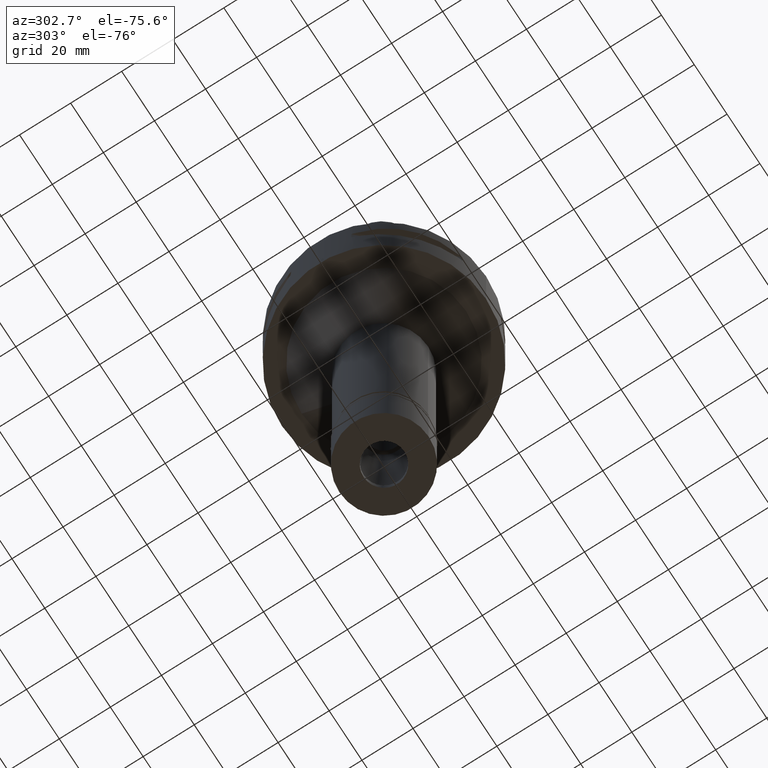
[diagram: clean part render]
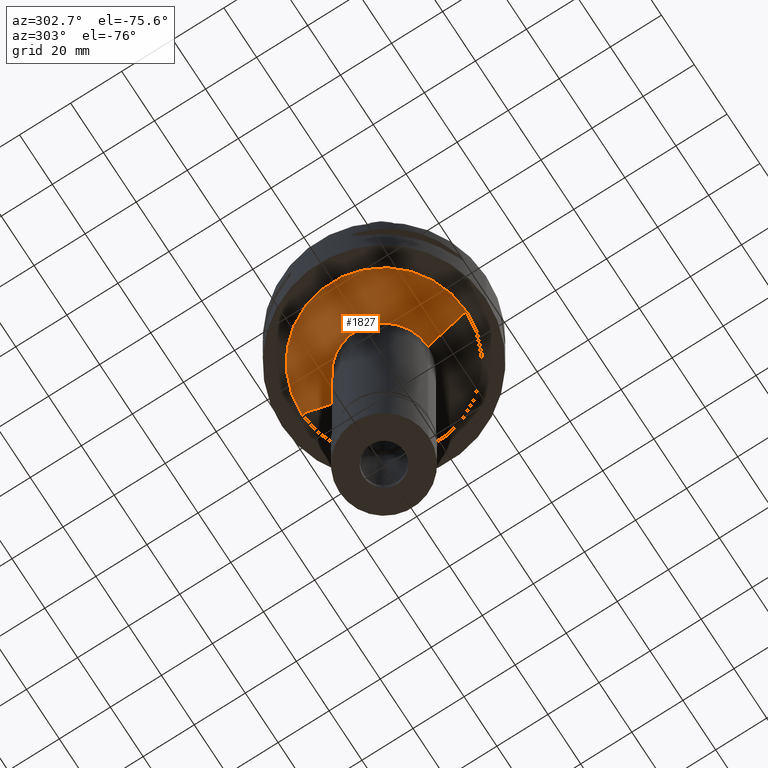
[diagram: same view with one face highlighted and labeled with its STEP entity id]
A machine part, auxiliary view. The second image highlights one B-rep face of the part: STEP entity #1827.
In plain terms, the highlighted conical surface has half-angle 45 deg.
Its self-contained STEP definition (entity closure, byte-faithful):
#87 = CARTESIAN_POINT ( 'NONE',  ( 0.0000000000000000000, 0.0000000000000000000, -30.00000000000000000 ) ) ;
#275 = LINE ( 'NONE', #300, #2601 ) ;
#300 = CARTESIAN_POINT ( 'NONE',  ( 0.0000000000000000000, -32.25000000000000000, -30.00000000000000000 ) ) ;
#313 = CARTESIAN_POINT ( 'NONE',  ( 0.0000000000000000000, 32.25000000000000000, -30.00000000000000000 ) ) ;
#396 = ORIENTED_EDGE ( 'NONE', *, *, #995, .F. ) ;
#659 = DIRECTION ( 'NONE',  ( 0.0000000000000000000, -0.7071067811865474617, -0.7071067811865474617 ) ) ;
#668 = DIRECTION ( 'NONE',  ( 0.0000000000000000000, 0.0000000000000000000, -1.000000000000000000 ) ) ;
#784 = AXIS2_PLACEMENT_3D ( 'NONE', #87, #668, #4644 ) ;
#838 = CARTESIAN_POINT ( 'NONE',  ( 0.0000000000000000000, 32.25000000000000000, -30.00000000000000000 ) ) ;
#995 = EDGE_CURVE ( 'NONE', #1574, #2195, #275, .T. ) ;
#1028 = VECTOR ( 'NONE', #659, 1000.000000000000114 ) ;
#1100 = CARTESIAN_POINT ( 'NONE',  ( 0.0000000000000000000, -17.25000000000000000, -45.00000000000000000 ) ) ;
#1214 = CARTESIAN_POINT ( 'NONE',  ( 0.0000000000000000000, 17.25000000000000000, -45.00000000000000000 ) ) ;
#1353 = VERTEX_POINT ( 'NONE', #1214 ) ;
#1410 = DIRECTION ( 'NONE',  ( 0.0000000000000000000, 0.0000000000000000000, 1.000000000000000000 ) ) ;
#1509 = FACE_OUTER_BOUND ( 'NONE', #2941, .T. ) ;
#1532 = ORIENTED_EDGE ( 'NONE', *, *, #1660, .T. ) ;
#1574 = VERTEX_POINT ( 'NONE', #2507 ) ;
#1600 = CIRCLE ( 'NONE', #2678, 17.25000000000000000 ) ;
#1660 = EDGE_CURVE ( 'NONE', #1574, #3405, #4186, .T. ) ;
#1827 = ADVANCED_FACE ( 'NONE', ( #1509 ), #4195, .T. ) ;
#2097 = DIRECTION ( 'NONE',  ( 0.0000000000000000000, -1.000000000000000000, 0.0000000000000000000 ) ) ;
#2195 = VERTEX_POINT ( 'NONE', #1100 ) ;
#2333 = EDGE_CURVE ( 'NONE', #3405, #1353, #4687, .T. ) ;
#2507 = CARTESIAN_POINT ( 'NONE',  ( 0.0000000000000000000, -32.25000000000000000, -30.00000000000000000 ) ) ;
#2601 = VECTOR ( 'NONE', #3504, 1000.000000000000114 ) ;
#2678 = AXIS2_PLACEMENT_3D ( 'NONE', #4148, #2903, #2097 ) ;
#2903 = DIRECTION ( 'NONE',  ( 0.0000000000000000000, 0.0000000000000000000, -1.000000000000000000 ) ) ;
#2941 = EDGE_LOOP ( 'NONE', ( #4122, #396, #1532, #3494 ) ) ;
#2994 = DIRECTION ( 'NONE',  ( 0.0000000000000000000, 1.000000000000000000, 0.0000000000000000000 ) ) ;
#3101 = CARTESIAN_POINT ( 'NONE',  ( 0.0000000000000000000, 0.0000000000000000000, -37.50000000000000000 ) ) ;
#3405 = VERTEX_POINT ( 'NONE', #838 ) ;
#3494 = ORIENTED_EDGE ( 'NONE', *, *, #2333, .T. ) ;
#3504 = DIRECTION ( 'NONE',  ( 0.0000000000000000000, 0.7071067811865474617, -0.7071067811865474617 ) ) ;
#4122 = ORIENTED_EDGE ( 'NONE', *, *, #5111, .F. ) ;
#4148 = CARTESIAN_POINT ( 'NONE',  ( 0.0000000000000000000, 0.0000000000000000000, -45.00000000000000000 ) ) ;
#4186 = CIRCLE ( 'NONE', #784, 32.25000000000000000 ) ;
#4195 = CONICAL_SURFACE ( 'NONE', #4535, 24.75000000000000000, 0.7853981633972997312 ) ;
#4535 = AXIS2_PLACEMENT_3D ( 'NONE', #3101, #1410, #2994 ) ;
#4644 = DIRECTION ( 'NONE',  ( 0.0000000000000000000, -1.000000000000000000, 0.0000000000000000000 ) ) ;
#4687 = LINE ( 'NONE', #313, #1028 ) ;
#5111 = EDGE_CURVE ( 'NONE', #2195, #1353, #1600, .T. ) ;